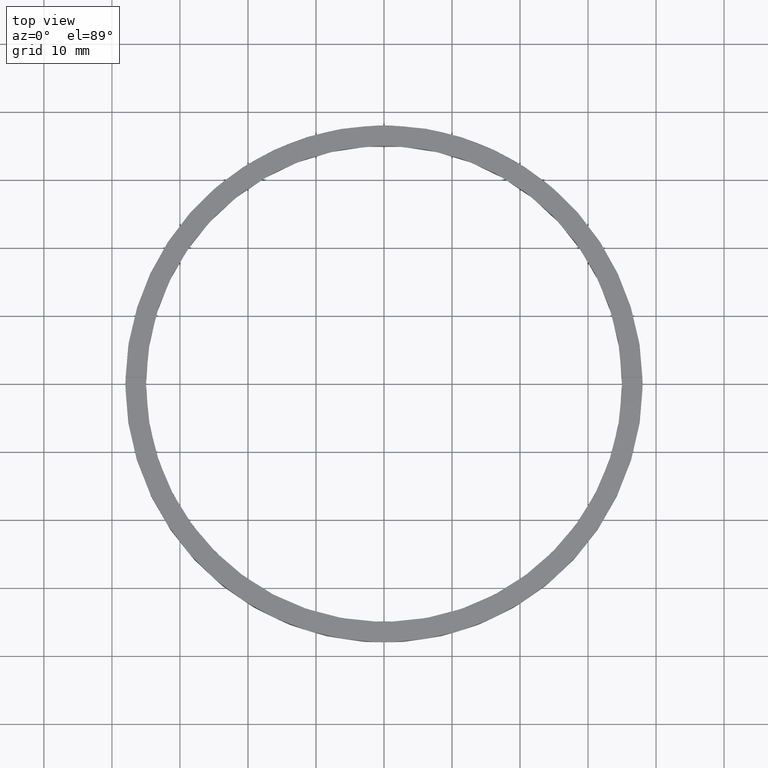
[diagram: clean part render]
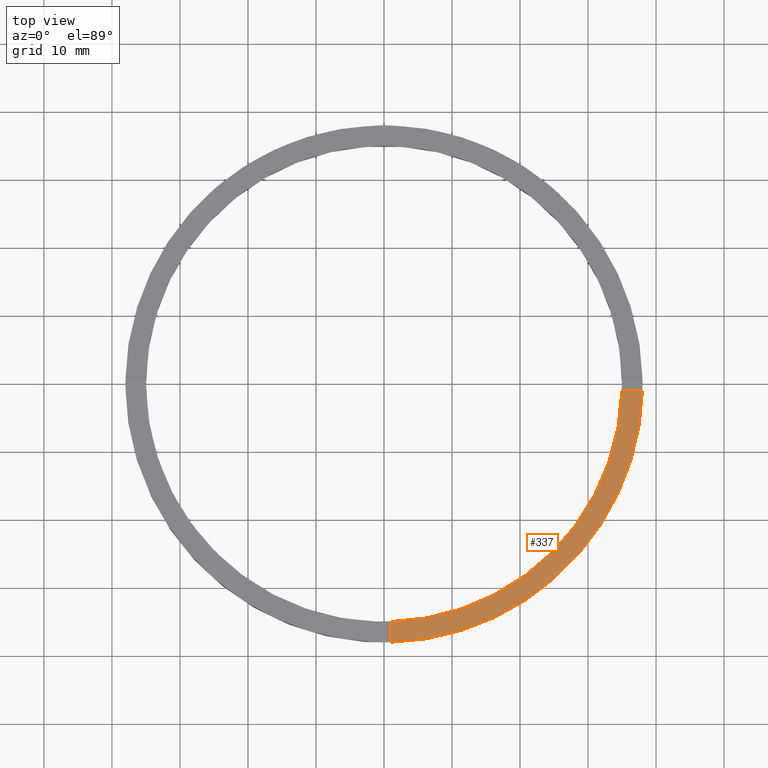
[diagram: same view with one face highlighted and labeled with its STEP entity id]
A machine part, top view. The second image highlights one B-rep face of the part: STEP entity #337.
In plain terms, the highlighted planar face has unit normal (0, 0, 1).
Its self-contained STEP definition (entity closure, byte-faithful):
#19 = CIRCLE ( 'NONE', #434, 35.00000000000000711 ) ;
#21 = EDGE_CURVE ( 'NONE', #488, #224, #195, .T. ) ;
#57 = FACE_OUTER_BOUND ( 'NONE', #642, .T. ) ;
#65 = EDGE_CURVE ( 'NONE', #488, #376, #182, .T. ) ;
#134 = ORIENTED_EDGE ( 'NONE', *, *, #65, .T. ) ;
#154 = CARTESIAN_POINT ( 'NONE',  ( 0.000000000000000000, 0.000000000000000000, 3.500000000000000000 ) ) ;
#160 = DIRECTION ( 'NONE',  ( 1.000000000000000000, 0.000000000000000000, 0.000000000000000000 ) ) ;
#182 = CIRCLE ( 'NONE', #443, 38.00000000000000000 ) ;
#189 = CARTESIAN_POINT ( 'NONE',  ( 27.99999999999998934, -1.000000000000158096, 3.500000000000000000 ) ) ;
#195 = LINE ( 'NONE', #477, #699 ) ;
#224 = VERTEX_POINT ( 'NONE', #782 ) ;
#229 = ORIENTED_EDGE ( 'NONE', *, *, #367, .F. ) ;
#284 = DIRECTION ( 'NONE',  ( 1.000000000000000000, 0.000000000000000000, 0.000000000000000000 ) ) ;
#317 = DIRECTION ( 'NONE',  ( 1.000000000000000000, 0.000000000000000000, -0.000000000000000000 ) ) ;
#336 = LINE ( 'NONE', #189, #595 ) ;
#337 = ADVANCED_FACE ( 'NONE', ( #57 ), #746, .T. ) ;
#339 = CARTESIAN_POINT ( 'NONE',  ( 0.000000000000000000, 0.000000000000000000, 3.500000000000000000 ) ) ;
#367 = EDGE_CURVE ( 'NONE', #378, #376, #336, .T. ) ;
#376 = VERTEX_POINT ( 'NONE', #553 ) ;
#378 = VERTEX_POINT ( 'NONE', #631 ) ;
#406 = DIRECTION ( 'NONE',  ( 0.000000000000000000, 0.000000000000000000, 1.000000000000000000 ) ) ;
#420 = DIRECTION ( 'NONE',  ( 0.000000000000000000, 0.000000000000000000, 1.000000000000000000 ) ) ;
#434 = AXIS2_PLACEMENT_3D ( 'NONE', #154, #420, #160 ) ;
#441 = DIRECTION ( 'NONE',  ( 1.000000000000000000, 6.505213034913025371E-17, 0.000000000000000000 ) ) ;
#443 = AXIS2_PLACEMENT_3D ( 'NONE', #339, #406, #284 ) ;
#452 = ORIENTED_EDGE ( 'NONE', *, *, #535, .F. ) ;
#477 = CARTESIAN_POINT ( 'NONE',  ( 0.9999999999998389066, -28.00000000000017764, 3.500000000000000000 ) ) ;
#488 = VERTEX_POINT ( 'NONE', #505 ) ;
#505 = CARTESIAN_POINT ( 'NONE',  ( 0.9999999999998402389, -37.98683982644516277, 3.500000000000000000 ) ) ;
#529 = DIRECTION ( 'NONE',  ( -1.301042606982605074E-16, 1.000000000000000000, -0.000000000000000000 ) ) ;
#535 = EDGE_CURVE ( 'NONE', #224, #378, #19, .T. ) ;
#553 = CARTESIAN_POINT ( 'NONE',  ( 37.98683982644514856, -1.000000000000157430, 3.500000000000000000 ) ) ;
#580 = AXIS2_PLACEMENT_3D ( 'NONE', #673, #731, #317 ) ;
#595 = VECTOR ( 'NONE', #441, 1000.000000000000000 ) ;
#631 = CARTESIAN_POINT ( 'NONE',  ( 34.98571136907180090, -1.000000000000157652, 3.500000000000000000 ) ) ;
#642 = EDGE_LOOP ( 'NONE', ( #229, #452, #751, #134 ) ) ;
#673 = CARTESIAN_POINT ( 'NONE',  ( 0.000000000000000000, 0.000000000000000000, 3.500000000000000000 ) ) ;
#699 = VECTOR ( 'NONE', #529, 1000.000000000000000 ) ;
#731 = DIRECTION ( 'NONE',  ( 0.000000000000000000, 0.000000000000000000, 1.000000000000000000 ) ) ;
#746 = PLANE ( 'NONE',  #580 ) ;
#751 = ORIENTED_EDGE ( 'NONE', *, *, #21, .F. ) ;
#782 = CARTESIAN_POINT ( 'NONE',  ( 0.9999999999998397948, -34.98571136907181511, 3.500000000000000000 ) ) ;